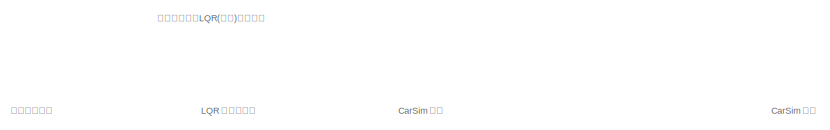
[diagram: root canvas - part 1/3, top left region]
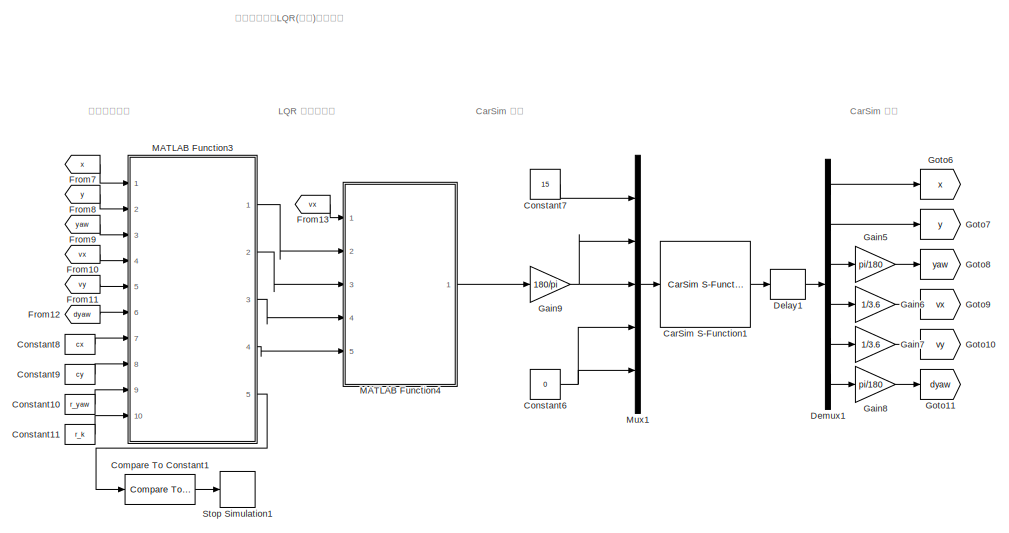
[diagram: root canvas - part 2/3, top right region]
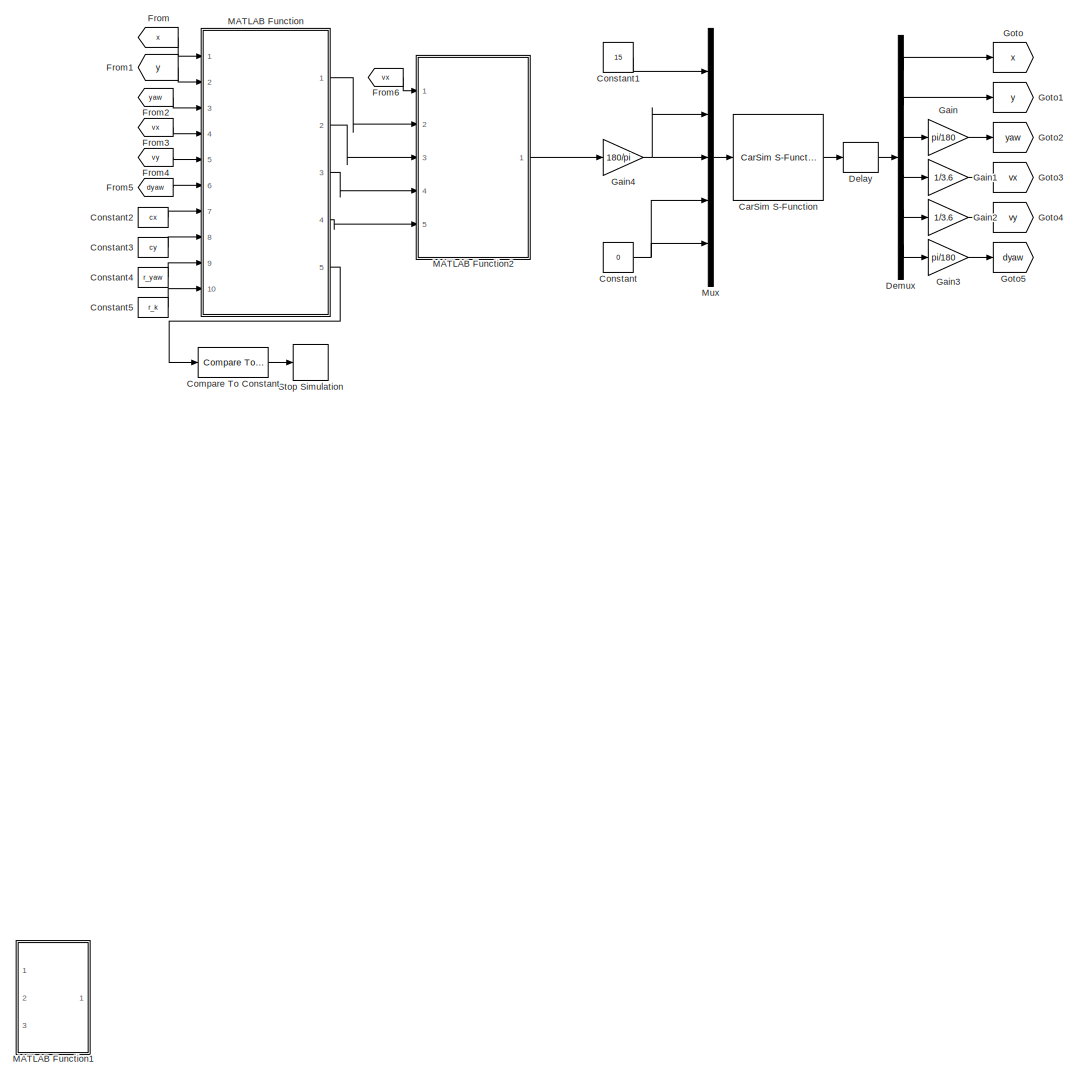
[diagram: root canvas - part 3/3, left side, full height]
MODEL slx_75030208bb33
KIND model
CONFIG AbsTol = auto
CONFIG EnableMultiTasking = off
CONFIG FixedStep = auto
CONFIG MaxStep = auto
CONFIG MinStep = auto
CONFIG RelTol = 1e-3
CONFIG SampleTimeConstraint = Unconstrained
CONFIG SolverName = VariableStepAuto
CONFIG StartTime = 0.0
CONFIG StopTime = 70
BLOCK [Reference] CarSim S-Function  REF=Solver_SF/CarSim S-Function
  Ports = [1, 1]
  Priority = 1
  SourceBlock = Solver_SF/CarSim S-Function
  SourceProductName = CarSim S-Function
  SourceType = Vehicle math model library
BLOCK [Reference] CarSim S-Function1  REF=Solver_SF/CarSim S-Function
  Commented = on
  Ports = [1, 1]
  Priority = 1
  SourceBlock = Solver_SF/CarSim S-Function
  SourceProductName = CarSim S-Function
  SourceType = Vehicle math model library
BLOCK [Reference] Compare To Constant  REF=simulink/Logic and Bit
Operations/Compare
To Constant
  Ports = [1, 1]
  SourceBlock = simulink/Logic and Bit\nOperations/Compare\nTo Constant
  SourceProductBaseCode = SL
  SourceType = Compare To Constant
BLOCK [Reference] Compare To Constant1  REF=simulink/Logic and Bit
Operations/Compare
To Constant
  Commented = on
  Ports = [1, 1]
  SourceBlock = simulink/Logic and Bit\nOperations/Compare\nTo Constant
  SourceProductBaseCode = SL
  SourceType = Compare To Constant
BLOCK [Constant] Constant
  Value = 0
BLOCK [Constant] Constant1
  Value = 15
BLOCK [Constant] Constant10
  Commented = on
  Value = r_yaw
BLOCK [Constant] Constant11
  Commented = on
  Value = r_k
BLOCK [Constant] Constant2
  Value = cx
BLOCK [Constant] Constant3
  Value = cy
BLOCK [Constant] Constant4
  Value = r_yaw
BLOCK [Constant] Constant5
  Value = r_k
BLOCK [Constant] Constant6
  Commented = on
  Value = 0
BLOCK [Constant] Constant7
  Commented = on
  Value = 15
BLOCK [Constant] Constant8
  Commented = on
  Value = cx
BLOCK [Constant] Constant9
  Commented = on
  Value = cy
BLOCK [Delay] Delay
  DelayLength = 1
  InitialCondition = 0
  InputPortMap = u0
  Ports = [1, 1]
  UseCircularBuffer = on
  UserDataPersistent = on
BLOCK [Delay] Delay1
  Commented = on
  DelayLength = 1
  InitialCondition = 0
  InputPortMap = u0
  Ports = [1, 1]
  UseCircularBuffer = on
  UserDataPersistent = on
BLOCK [Demux] Demux
  Outputs = 6
  Ports = [1, 6]
BLOCK [Demux] Demux1
  Commented = on
  Outputs = 6
  Ports = [1, 6]
BLOCK [From] From
  GotoTag = x
BLOCK [From] From1
  GotoTag = y
BLOCK [From] From10
  Commented = on
  GotoTag = vx
BLOCK [From] From11
  Commented = on
  GotoTag = vy
BLOCK [From] From12
  Commented = on
  GotoTag = dyaw
BLOCK [From] From13
  Commented = on
  GotoTag = vx
BLOCK [From] From2
  GotoTag = yaw
BLOCK [From] From3
  GotoTag = vx
BLOCK [From] From4
  GotoTag = vy
BLOCK [From] From5
  GotoTag = dyaw
BLOCK [From] From6
  GotoTag = vx
BLOCK [From] From7
  Commented = on
  GotoTag = x
BLOCK [From] From8
  Commented = on
  GotoTag = y
BLOCK [From] From9
  Commented = on
  GotoTag = yaw
BLOCK [Gain] Gain
  Gain = pi/180
BLOCK [Gain] Gain1
  Gain = 1/3.6
BLOCK [Gain] Gain2
  Gain = 1/3.6
BLOCK [Gain] Gain3
  Gain = pi/180
BLOCK [Gain] Gain4
  Gain = 180/pi
BLOCK [Gain] Gain5
  Commented = on
  Gain = pi/180
BLOCK [Gain] Gain6
  Commented = on
  Gain = 1/3.6
BLOCK [Gain] Gain7
  Commented = on
  Gain = 1/3.6
BLOCK [Gain] Gain8
  Commented = on
  Gain = pi/180
BLOCK [Gain] Gain9
  Commented = on
  Gain = 180/pi
BLOCK [Goto] Goto
  GotoTag = x
BLOCK [Goto] Goto1
  GotoTag = y
BLOCK [Goto] Goto10
  Commented = on
  GotoTag = vy
BLOCK [Goto] Goto11
  Commented = on
  GotoTag = dyaw
BLOCK [Goto] Goto2
  GotoTag = yaw
BLOCK [Goto] Goto3
  GotoTag = vx
BLOCK [Goto] Goto4
  GotoTag = vy
BLOCK [Goto] Goto5
  GotoTag = dyaw
BLOCK [Goto] Goto6
  Commented = on
  GotoTag = x
BLOCK [Goto] Goto7
  Commented = on
  GotoTag = y
BLOCK [Goto] Goto8
  Commented = on
  GotoTag = yaw
BLOCK [Goto] Goto9
  Commented = on
  GotoTag = vx
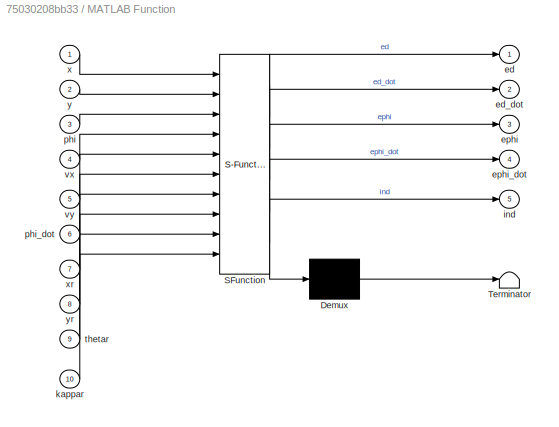
BLOCK [SubSystem] MATLAB Function
  ErrorFcn = Stateflow.Translate.translate
  PermitHierarchicalResolution = ExplicitOnly
  Ports = [10, 5]
  RequestExecContextInheritance = off
  SFBlockType = MATLAB Function
  TreatAsAtomicUnit = on
BLOCK [Demux] MATLAB Function/ Demux 
  Outputs = 1
  Ports = [1, 1]
BLOCK [S-Function] MATLAB Function/ SFunction 
  EnableBusSupport = on
  FunctionName = sf_sfun
  PortCounts = [10 6]
  Ports = [10, 6]
  SFcnIsStateOwnerBlock = off
  SFunctionDeploymentMode = off
  Tag = Stateflow S-Function 2
BLOCK [Terminator] MATLAB Function/ Terminator 
BLOCK [Outport] MATLAB Function/ed
BLOCK [Outport] MATLAB Function/ed_dot
  Port = 2
BLOCK [Outport] MATLAB Function/ephi
  Port = 3
BLOCK [Outport] MATLAB Function/ephi_dot
  Port = 4
BLOCK [Outport] MATLAB Function/ind
  Port = 5
BLOCK [Inport] MATLAB Function/kappar
  Port = 10
BLOCK [Inport] MATLAB Function/phi
  Port = 3
BLOCK [Inport] MATLAB Function/phi_dot
  Port = 6
BLOCK [Inport] MATLAB Function/thetar
  Port = 9
BLOCK [Inport] MATLAB Function/vx
  Port = 4
BLOCK [Inport] MATLAB Function/vy
  Port = 5
BLOCK [Inport] MATLAB Function/x
BLOCK [Inport] MATLAB Function/xr
  Port = 7
BLOCK [Inport] MATLAB Function/y
  Port = 2
BLOCK [Inport] MATLAB Function/yr
  Port = 8
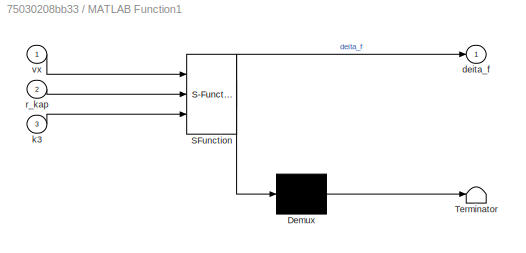
BLOCK [SubSystem] MATLAB Function1
  ErrorFcn = Stateflow.Translate.translate
  PermitHierarchicalResolution = ExplicitOnly
  Ports = [3, 1]
  RequestExecContextInheritance = off
  SFBlockType = MATLAB Function
  TreatAsAtomicUnit = on
BLOCK [Demux] MATLAB Function1/ Demux 
  Outputs = 1
  Ports = [1, 1]
BLOCK [S-Function] MATLAB Function1/ SFunction 
  EnableBusSupport = on
  FunctionName = sf_sfun
  PortCounts = [3 2]
  Ports = [3, 2]
  SFcnIsStateOwnerBlock = off
  SFunctionDeploymentMode = off
  Tag = Stateflow S-Function 1
BLOCK [Terminator] MATLAB Function1/ Terminator 
BLOCK [Outport] MATLAB Function1/deita_f
BLOCK [Inport] MATLAB Function1/k3
  Port = 3
BLOCK [Inport] MATLAB Function1/r_kap
  Port = 2
BLOCK [Inport] MATLAB Function1/vx
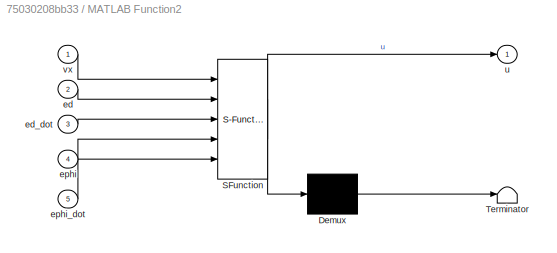
BLOCK [SubSystem] MATLAB Function2
  ErrorFcn = Stateflow.Translate.translate
  PermitHierarchicalResolution = ExplicitOnly
  Ports = [5, 1]
  RequestExecContextInheritance = off
  SFBlockType = MATLAB Function
  TreatAsAtomicUnit = on
BLOCK [Demux] MATLAB Function2/ Demux 
  Outputs = 1
  Ports = [1, 1]
BLOCK [S-Function] MATLAB Function2/ SFunction 
  EnableBusSupport = on
  FunctionName = sf_sfun
  PortCounts = [5 2]
  Ports = [5, 2]
  SFcnIsStateOwnerBlock = off
  SFunctionDeploymentMode = off
  Tag = Stateflow S-Function 3
BLOCK [Terminator] MATLAB Function2/ Terminator 
BLOCK [Inport] MATLAB Function2/ed
  Port = 2
BLOCK [Inport] MATLAB Function2/ed_dot
  Port = 3
BLOCK [Inport] MATLAB Function2/ephi
  Port = 4
BLOCK [Inport] MATLAB Function2/ephi_dot
  Port = 5
BLOCK [Outport] MATLAB Function2/u
BLOCK [Inport] MATLAB Function2/vx
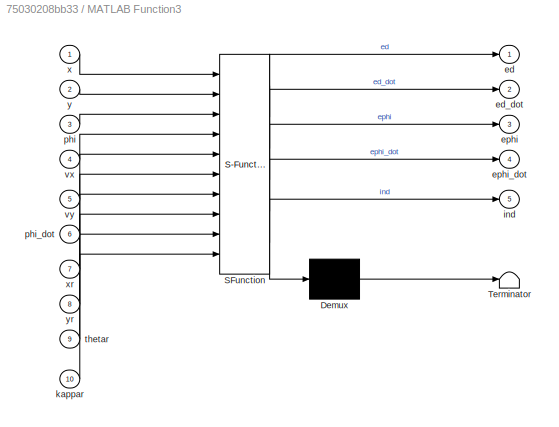
BLOCK [SubSystem] MATLAB Function3
  Commented = on
  ErrorFcn = Stateflow.Translate.translate
  PermitHierarchicalResolution = ExplicitOnly
  Ports = [10, 5]
  RequestExecContextInheritance = off
  SFBlockType = MATLAB Function
  TreatAsAtomicUnit = on
BLOCK [Demux] MATLAB Function3/ Demux 
  Outputs = 1
  Ports = [1, 1]
BLOCK [S-Function] MATLAB Function3/ SFunction 
  EnableBusSupport = on
  FunctionName = sf_sfun
  PortCounts = [10 6]
  Ports = [10, 6]
  SFcnIsStateOwnerBlock = off
  SFunctionDeploymentMode = off
  Tag = Stateflow S-Function 4
BLOCK [Terminator] MATLAB Function3/ Terminator 
BLOCK [Outport] MATLAB Function3/ed
BLOCK [Outport] MATLAB Function3/ed_dot
  Port = 2
BLOCK [Outport] MATLAB Function3/ephi
  Port = 3
BLOCK [Outport] MATLAB Function3/ephi_dot
  Port = 4
BLOCK [Outport] MATLAB Function3/ind
  Port = 5
BLOCK [Inport] MATLAB Function3/kappar
  Port = 10
BLOCK [Inport] MATLAB Function3/phi
  Port = 3
BLOCK [Inport] MATLAB Function3/phi_dot
  Port = 6
BLOCK [Inport] MATLAB Function3/thetar
  Port = 9
BLOCK [Inport] MATLAB Function3/vx
  Port = 4
BLOCK [Inport] MATLAB Function3/vy
  Port = 5
BLOCK [Inport] MATLAB Function3/x
BLOCK [Inport] MATLAB Function3/xr
  Port = 7
BLOCK [Inport] MATLAB Function3/y
  Port = 2
BLOCK [Inport] MATLAB Function3/yr
  Port = 8
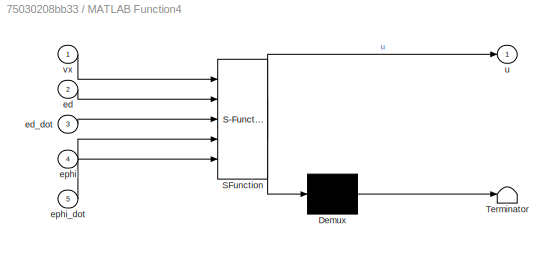
BLOCK [SubSystem] MATLAB Function4
  Commented = on
  ErrorFcn = Stateflow.Translate.translate
  PermitHierarchicalResolution = ExplicitOnly
  Ports = [5, 1]
  RequestExecContextInheritance = off
  SFBlockType = MATLAB Function
  TreatAsAtomicUnit = on
BLOCK [Demux] MATLAB Function4/ Demux 
  Outputs = 1
  Ports = [1, 1]
BLOCK [S-Function] MATLAB Function4/ SFunction 
  EnableBusSupport = on
  FunctionName = sf_sfun
  PortCounts = [5 2]
  Ports = [5, 2]
  SFcnIsStateOwnerBlock = off
  SFunctionDeploymentMode = off
  Tag = Stateflow S-Function 5
BLOCK [Terminator] MATLAB Function4/ Terminator 
BLOCK [Inport] MATLAB Function4/ed
  Port = 2
BLOCK [Inport] MATLAB Function4/ed_dot
  Port = 3
BLOCK [Inport] MATLAB Function4/ephi
  Port = 4
BLOCK [Inport] MATLAB Function4/ephi_dot
  Port = 5
BLOCK [Outport] MATLAB Function4/u
BLOCK [Inport] MATLAB Function4/vx
BLOCK [Mux] Mux
  DisplayOption = bar
  Inputs = 5
  Ports = [5, 1]
BLOCK [Mux] Mux1
  Commented = on
  DisplayOption = bar
  Inputs = 5
  Ports = [5, 1]
BLOCK [Stop] Stop Simulation
BLOCK [Stop] Stop Simulation1
  Commented = on
ANNOTATION (root): CarSim 输入
ANNOTATION (root): CarSim 输出
ANNOTATION (root): LQR 计算控制量
ANNOTATION (root): 误差状态输出
ANNOTATION (root): 基于动力学的LQR(离散)路径跟踪
ANNOTATION (root): 基于动力学的LQR(连续)路径跟踪
LINE CarSim S-Function1:1 -> Delay1:1
LINE CarSim S-Function:1 -> Delay:1
LINE Compare To Constant1:1 -> Stop Simulation1:1
LINE Compare To Constant:1 -> Stop Simulation:1
LINE Constant10:1 -> MATLAB Function3:9
LINE Constant11:1 -> MATLAB Function3:10
LINE Constant1:1 -> Mux:1
LINE Constant2:1 -> MATLAB Function:7
LINE Constant3:1 -> MATLAB Function:8
LINE Constant4:1 -> MATLAB Function:9
LINE Constant5:1 -> MATLAB Function:10
NET Constant6:1 -> Mux1:4, Mux1:5
LINE Constant7:1 -> Mux1:1
LINE Constant8:1 -> MATLAB Function3:7
LINE Constant9:1 -> MATLAB Function3:8
NET Constant:1 -> Mux:4, Mux:5
LINE Delay1:1 -> Demux1:1
LINE Delay:1 -> Demux:1
LINE Demux1:1 -> Goto6:1
LINE Demux1:2 -> Goto7:1
LINE Demux1:3 -> Gain5:1
LINE Demux1:4 -> Gain6:1
LINE Demux1:5 -> Gain7:1
LINE Demux1:6 -> Gain8:1
LINE Demux:1 -> Goto:1
LINE Demux:2 -> Goto1:1
LINE Demux:3 -> Gain:1
LINE Demux:4 -> Gain1:1
LINE Demux:5 -> Gain2:1
LINE Demux:6 -> Gain3:1
LINE From10:1 -> MATLAB Function3:4
LINE From11:1 -> MATLAB Function3:5
LINE From12:1 -> MATLAB Function3:6
LINE From13:1 -> MATLAB Function4:1
LINE From1:1 -> MATLAB Function:2
LINE From2:1 -> MATLAB Function:3
LINE From3:1 -> MATLAB Function:4
LINE From4:1 -> MATLAB Function:5
LINE From5:1 -> MATLAB Function:6
LINE From6:1 -> MATLAB Function2:1
LINE From7:1 -> MATLAB Function3:1
LINE From8:1 -> MATLAB Function3:2
LINE From9:1 -> MATLAB Function3:3
LINE From:1 -> MATLAB Function:1
LINE Gain1:1 -> Goto3:1
LINE Gain2:1 -> Goto4:1
LINE Gain3:1 -> Goto5:1
NET Gain4:1 -> Mux:2, Mux:3
LINE Gain5:1 -> Goto8:1
LINE Gain6:1 -> Goto9:1
LINE Gain7:1 -> Goto10:1
LINE Gain8:1 -> Goto11:1
NET Gain9:1 -> Mux1:2, Mux1:3
LINE Gain:1 -> Goto2:1
LINE MATLAB Function2:1 -> Gain4:1
LINE MATLAB Function3:1 -> MATLAB Function4:2
LINE MATLAB Function3:2 -> MATLAB Function4:3
LINE MATLAB Function3:3 -> MATLAB Function4:4
LINE MATLAB Function3:4 -> MATLAB Function4:5
LINE MATLAB Function3:5 -> Compare To Constant1:1
LINE MATLAB Function4:1 -> Gain9:1
LINE MATLAB Function:1 -> MATLAB Function2:2
LINE MATLAB Function:2 -> MATLAB Function2:3
LINE MATLAB Function:3 -> MATLAB Function2:4
LINE MATLAB Function:4 -> MATLAB Function2:5
LINE MATLAB Function:5 -> Compare To Constant:1
LINE Mux1:1 -> CarSim S-Function1:1
LINE Mux:1 -> CarSim S-Function:1
note: NET lines group one-source signal fan-out (src -> all destinations, sorted); 1:1 wires keep LINE
CHART MATLAB Function1 states=1 transitions=1
  STATE_LABEL 'eML_blk_kernel()'
  STATE_LABEL 'SCRIPT:\nfunction deita_f  = findPoint(vx,r_kap,k3)\n\n\n\n% e_X=[ed;ed_dot;ephi; ephi_dot];\n\n\n% 车辆参数\ncf = -148970;\ncr = -82204;\nm = 1412;\n% Iz=1536.7;\nlf=1.015;\nlr=2.910-1.015;\n\n\nv=vx+0.05;\n\n\ndeita_f=r_kap*(lf+lr-lr*k3-(m*v*v/(lf+lr))*(lr/cf+(lf/cr)*k3-lf/cr));\n\nend\n'
CHART MATLAB Function states=1 transitions=1
  STATE_LABEL 'eML_blk_kernel()'
  STATE_LABEL 'SCRIPT:\nfunction [ed,ed_dot,ephi,ephi_dot,ind] = fcn(x,y,phi, vx,vy,phi_dot,xr,yr,thetar,kappar)\n    %寻找匹配点\n    n=length(xr);\n    d_min=(x-xr(1))^2+(y-yr(1))^2;\n    min=1;\n    for i=1:n\n        d=(x-xr(i))^2+(y-yr(i))^2;\n        if d<d_min\n            d_min=d;\n            min=i;\n        end\n    end\n    ind=min;\n\n    %计算状态方程中的状态向量\n    tor=[cos(thetar(ind));sin(thetar(ind))];\n    nor=[-sin(thetar(in...<+529ch>'
CHART MATLAB Function2 states=1 transitions=1
  STATE_LABEL 'eML_blk_kernel()'
  STATE_LABEL 'SCRIPT:\n% 首先在参考轨迹上搜索离当前车辆位置最近的点\nfunction u   = findPoint(vx,ed,ed_dot,ephi, ephi_dot)\ne_X=[ed;ed_dot;ephi; ephi_dot];\n\n% 车辆参数\n    cf = -79127;\n    cr = -79127;\n    m = 1235.9;\n    Iz=1343.1;\n    lf=1.3;\n    lr=2.6-1.3;\n% 离散化采样时\n    T=0.05; \n\nv=vx+0.05;    % 分母不能为0，故加上很小数\n% 离散化之前的状态空间方程的矩阵系数 A,B\n a1=[0,          1,                  0,                  0;\n     0,    (cf+cr)/(m*v),       -(cf+cr)/m, ...<+853ch>'
CHART MATLAB Function3 states=1 transitions=1
  STATE_LABEL 'eML_blk_kernel()'
  STATE_LABEL 'SCRIPT:\nfunction [ed,ed_dot,ephi,ephi_dot,ind] = fcn(x,y,phi, vx,vy,phi_dot,xr,yr,thetar,kappar)\n    %寻找匹配点\n    n=length(xr);\n    d_min=(x-xr(1))^2+(y-yr(1))^2;\n    min=1;\n    for i=1:n\n        d=(x-xr(i))^2+(y-yr(i))^2;\n        if d<d_min\n            d_min=d;\n            min=i;\n        end\n    end\n    ind=min;\n\n    %计算状态方程中的状态向量\n    tor=[cos(thetar(ind));sin(thetar(ind))];\n    nor=[-sin(thetar(in...<+527ch>'
CHART MATLAB Function4 states=1 transitions=1
  STATE_LABEL 'eML_blk_kernel()'
  STATE_LABEL 'SCRIPT:\nfunction u   = findPoint(vx,ed,ed_dot,ephi, ephi_dot)\n% 状态量    \n    e_X=[ed;ed_dot;ephi; ephi_dot];\n\n% 车辆参数\n    cf = -79127;\n    cr = -79127;\n    m = 1235.9;\n    Iz = 1343.1;\n    lf = 1.3;\n    lr = 2.6-1.3;\n\n    v=vx+0.05;   %防止分母为0\n% 离散化之前的状态空间方程的矩阵系数 A,B\n    a1=[0,          1,                  0,                  0;\n        0,    (cf+cr)/(m*v),       -(cf+cr)/m,     (lf*cf-lr*cr)/(m*v);\n...<+606ch>'
CHART  states=0 transitions=0
CHART  states=0 transitions=0
CHART  states=0 transitions=0
CHART  states=0 transitions=0
CHART  states=0 transitions=0
